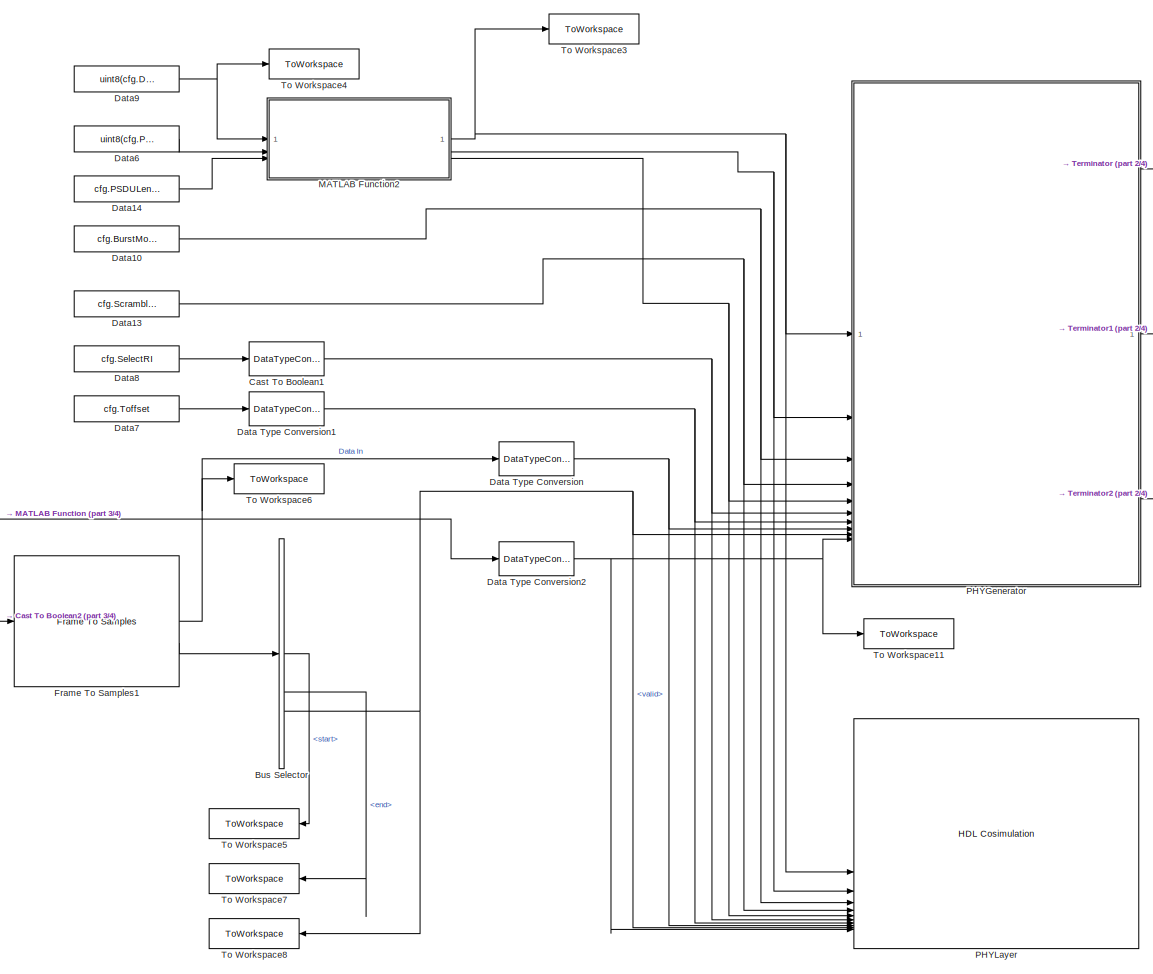
[diagram: root canvas - part 1/4, center side, full height]
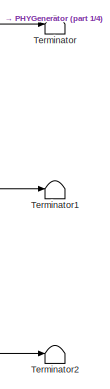
[diagram: root canvas - part 2/4, middle right region]
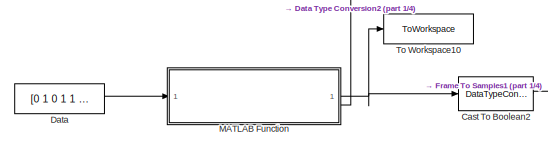
[diagram: root canvas - part 3/4, middle left region]
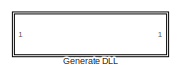
[diagram: root canvas - part 4/4, bottom right region]
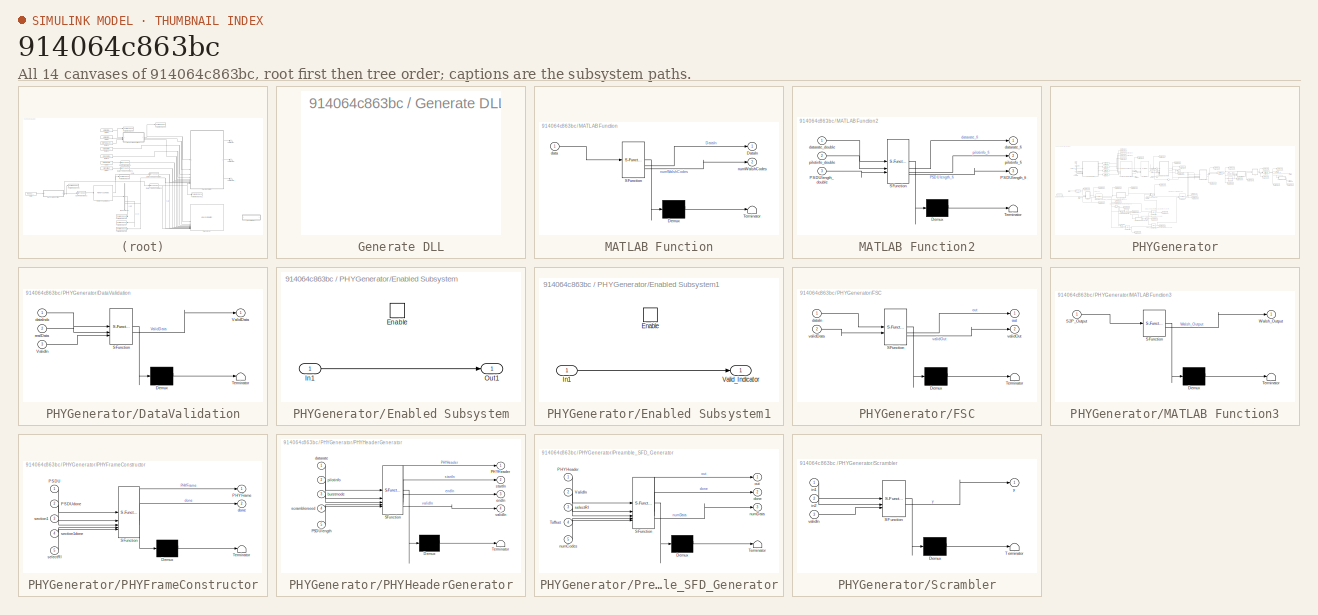
[diagram: thumbnail index - all 14 canvases of the model, root first then tree order]
MODEL slx_914064c863bc
KIND model
CONFIG AbsTol = auto
CONFIG EnableMultiTasking = off
CONFIG FixedStep = auto
CONFIG MaxStep = auto
CONFIG MinStep = auto
CONFIG RelTol = 1e-3
CONFIG SampleTimeConstraint = Unconstrained
CONFIG SolverName = FixedStepDiscrete
CONFIG StartTime = 0.0
CONFIG StopTime = 5E-2
BLOCK [BusSelector] Bus Selector
  OutputSignals = start,end,valid
BLOCK [DataTypeConversion] Cast To Boolean1
  OutDataTypeStr = boolean
  RndMeth = Floor
  SaturateOnIntegerOverflow = off
BLOCK [DataTypeConversion] Cast To Boolean2
  OutDataTypeStr = boolean
  RndMeth = Floor
  SaturateOnIntegerOverflow = off
BLOCK [Constant] Data
  SampleTime = -1
  Value = [0 1 0 1 1 0 1 1 1 1]
BLOCK [DataTypeConversion] Data Type Conversion
  OutDataTypeStr = fixdt(1,16)
  OutMax = [1]
  RndMeth = Floor
  SaturateOnIntegerOverflow = off
BLOCK [DataTypeConversion] Data Type Conversion1
  OutDataTypeStr = fixdt(1,16)
  OutMax = [16]
  RndMeth = Floor
  SaturateOnIntegerOverflow = off
BLOCK [DataTypeConversion] Data Type Conversion2
  OutDataTypeStr = fixdt(1,32)
  OutMax = [32]
  RndMeth = Floor
  SaturateOnIntegerOverflow = off
BLOCK [Constant] Data10
  SampleTime = (9056*8)/(42E6)
  Value = cfg.BurstMode
BLOCK [Constant] Data13
  SampleTime = (9056*8)/(42E6)
  Value = cfg.ScramblerSeed
BLOCK [Constant] Data14
  SampleTime = -1
  Value = cfg.PSDULength
BLOCK [Constant] Data6
  SampleTime = -1
  Value = uint8(cfg.PilotInfo)
BLOCK [Constant] Data7
  SampleTime = (9056*8)/(42E6)
  Value = cfg.Toffset
BLOCK [Constant] Data8
  SampleTime = (9056*8)/(42E6)
  Value = cfg.SelectRI
BLOCK [Constant] Data9
  SampleTime = -1
  Value = uint8(cfg.DataRate)
BLOCK [Reference] Frame To Samples1  REF=whdlio/Frame To Samples
  SourceBlock = whdlio/Frame To Samples
  SourceType = Frame To Samples
BLOCK [SubSystem] Generate DLL
  OpenFcn = eval('hdlverifier_gendll_PHYLayer');
BLOCK [SubSystem] MATLAB Function
  ErrorFcn = Stateflow.Translate.translate
  PermitHierarchicalResolution = ExplicitOnly
  SFBlockType = MATLAB Function
  TreatAsAtomicUnit = on
BLOCK [Demux] MATLAB Function/ Demux 
  Outputs = 1
BLOCK [S-Function] MATLAB Function/ SFunction 
  EnableBusSupport = on
  FunctionName = sf_sfun
  PortCounts = [1 3]
  SFcnIsStateOwnerBlock = off
  SFunctionDeploymentMode = off
  Tag = Stateflow S-Function 13
BLOCK [Terminator] MATLAB Function/ Terminator 
BLOCK [Outport] MATLAB Function/DataIn
  VectorParamsAs1DForOutWhenUnconnected = off
BLOCK [Inport] MATLAB Function/data
BLOCK [Outport] MATLAB Function/numWalshCodes
  Port = 2
BLOCK [SubSystem] MATLAB Function2
  ErrorFcn = Stateflow.Translate.translate
  PermitHierarchicalResolution = ExplicitOnly
  SFBlockType = MATLAB Function
  TreatAsAtomicUnit = on
BLOCK [Demux] MATLAB Function2/ Demux 
  Outputs = 1
BLOCK [S-Function] MATLAB Function2/ SFunction 
  EnableBusSupport = on
  FunctionName = sf_sfun
  PortCounts = [3 4]
  SFcnIsStateOwnerBlock = off
  SFunctionDeploymentMode = off
  Tag = Stateflow S-Function 5
BLOCK [Terminator] MATLAB Function2/ Terminator 
BLOCK [Inport] MATLAB Function2/PSDUlength_double
  Port = 3
BLOCK [Outport] MATLAB Function2/PSDUlength_fi
  Port = 3
BLOCK [Inport] MATLAB Function2/datarate_double
BLOCK [Outport] MATLAB Function2/datarate_fi
  VectorParamsAs1DForOutWhenUnconnected = off
BLOCK [Inport] MATLAB Function2/pilotinfo_double
  Port = 2
BLOCK [Outport] MATLAB Function2/pilotinfo_fi
  Port = 2
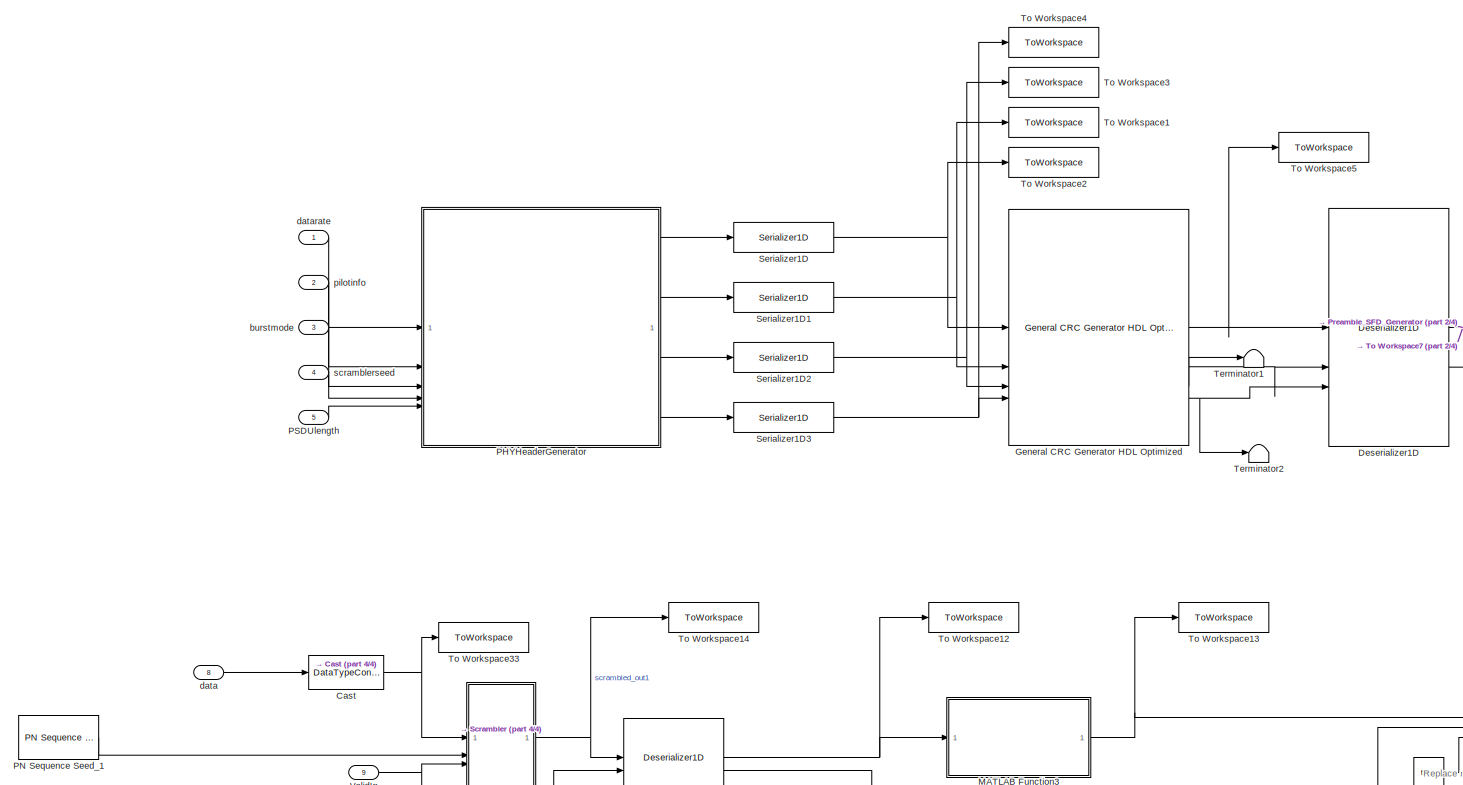
[diagram: PHYGenerator - part 1/4, top left region]
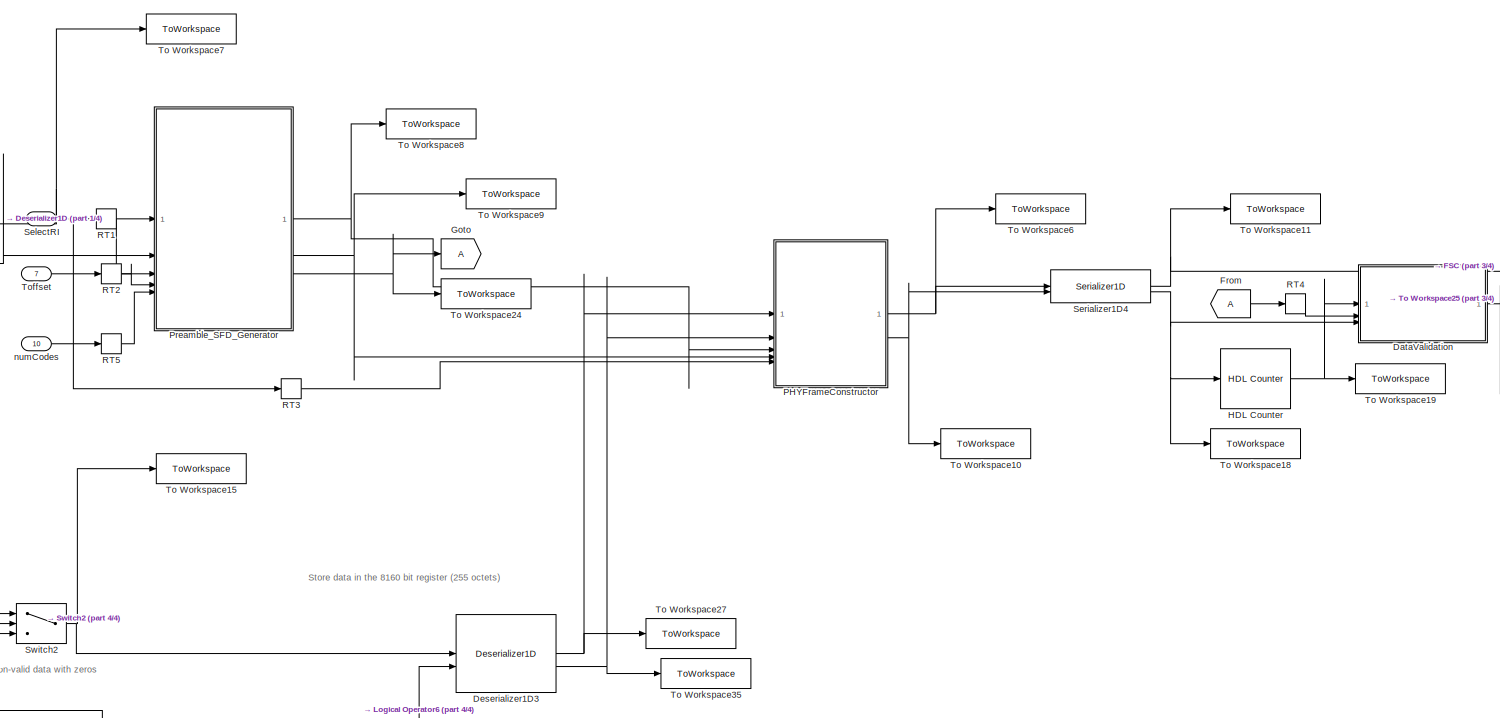
[diagram: PHYGenerator - part 2/4, central region]
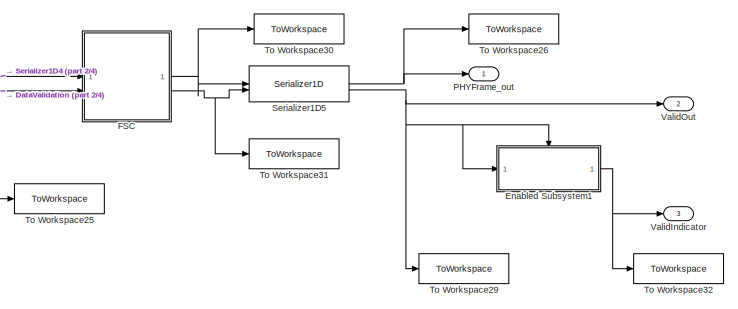
[diagram: PHYGenerator - part 3/4, middle right region]
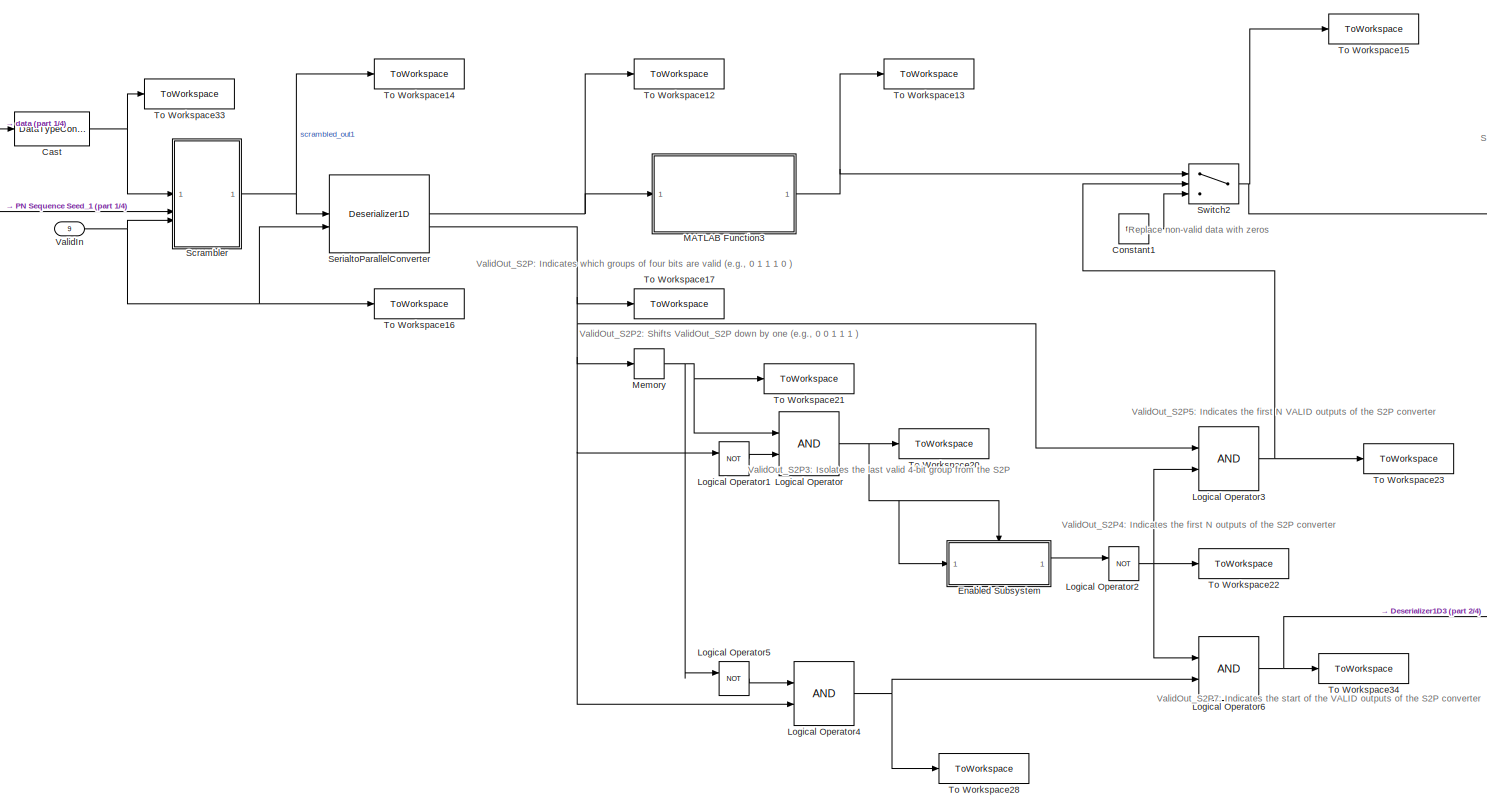
[diagram: PHYGenerator - part 4/4, bottom left region]
BLOCK [SubSystem] PHYGenerator
  TreatAsAtomicUnit = on
BLOCK [DataTypeConversion] PHYGenerator/Cast
  OutDataTypeStr = boolean
  RndMeth = Floor
  SaturateOnIntegerOverflow = off
BLOCK [Constant] PHYGenerator/Constant1
  SampleTime = -1
  Value = false
BLOCK [SubSystem] PHYGenerator/DataValidation
  ErrorFcn = Stateflow.Translate.translate
  PermitHierarchicalResolution = ExplicitOnly
  SFBlockType = MATLAB Function
  TreatAsAtomicUnit = on
BLOCK [Demux] PHYGenerator/DataValidation/ Demux 
  Outputs = 1
BLOCK [S-Function] PHYGenerator/DataValidation/ SFunction 
  EnableBusSupport = on
  FunctionName = sf_sfun
  PortCounts = [3 2]
  SFcnIsStateOwnerBlock = off
  SFunctionDeploymentMode = off
  Tag = Stateflow S-Function 12
BLOCK [Terminator] PHYGenerator/DataValidation/ Terminator 
BLOCK [Outport] PHYGenerator/DataValidation/ValidData
  VectorParamsAs1DForOutWhenUnconnected = off
BLOCK [Inport] PHYGenerator/DataValidation/ValidIn
  Port = 3
BLOCK [Inport] PHYGenerator/DataValidation/dataIndx
BLOCK [Inport] PHYGenerator/DataValidation/realData
  Port = 2
BLOCK [Reference] PHYGenerator/Deserializer1D  REF=hdlsllib/HDL Operations/Deserializer1D
  SourceBlock = hdlsllib/HDL Operations/Deserializer1D
  SourceType = Deserializer1D
BLOCK [Reference] PHYGenerator/Deserializer1D3  REF=hdlsllib/HDL Operations/Deserializer1D
  SourceBlock = hdlsllib/HDL Operations/Deserializer1D
  SourceType = Deserializer1D
BLOCK [SubSystem] PHYGenerator/Enabled Subsystem
  TreatAsAtomicUnit = on
BLOCK [EnablePort] PHYGenerator/Enabled Subsystem/Enable
BLOCK [Inport] PHYGenerator/Enabled Subsystem/In1
BLOCK [Outport] PHYGenerator/Enabled Subsystem/Out1
BLOCK [SubSystem] PHYGenerator/Enabled Subsystem1
  TreatAsAtomicUnit = on
BLOCK [EnablePort] PHYGenerator/Enabled Subsystem1/Enable
BLOCK [Inport] PHYGenerator/Enabled Subsystem1/In1
BLOCK [Outport] PHYGenerator/Enabled Subsystem1/Valid_Indicator
BLOCK [SubSystem] PHYGenerator/FSC
  ErrorFcn = Stateflow.Translate.translate
  PermitHierarchicalResolution = ExplicitOnly
  SFBlockType = MATLAB Function
  TreatAsAtomicUnit = on
BLOCK [Demux] PHYGenerator/FSC/ Demux 
  Outputs = 1
BLOCK [S-Function] PHYGenerator/FSC/ SFunction 
  EnableBusSupport = on
  FunctionName = sf_sfun
  PortCounts = [2 3]
  SFcnIsStateOwnerBlock = off
  SFunctionDeploymentMode = off
  Tag = Stateflow S-Function 16
BLOCK [Terminator] PHYGenerator/FSC/ Terminator 
BLOCK [Inport] PHYGenerator/FSC/dataIn
BLOCK [Outport] PHYGenerator/FSC/out
  VectorParamsAs1DForOutWhenUnconnected = off
BLOCK [Inport] PHYGenerator/FSC/validData
  Port = 2
BLOCK [Outport] PHYGenerator/FSC/validOut
  Port = 2
BLOCK [From] PHYGenerator/From
BLOCK [Reference] PHYGenerator/General CRC Generator HDL Optimized  REF=commhdlcrc/General CRC
Generator
HDL Optimized
  SourceBlock = commhdlcrc/General CRC\nGenerator\nHDL Optimized
  SourceType = General CRC Generator HDL Optimized
BLOCK [Goto] PHYGenerator/Goto
BLOCK [Reference] PHYGenerator/HDL Counter  REF=hdlsllib/Sources/HDL Counter
  SourceBlock = hdlsllib/Sources/HDL Counter
  SourceType = HDL Counter
BLOCK [Logic] PHYGenerator/Logical Operator
  AllPortsSameDT = off
  IconShape = distinctive
  OutDataTypeStr = boolean
BLOCK [Logic] PHYGenerator/Logical Operator1
  AllPortsSameDT = off
  IconShape = distinctive
  Operator = NOT
  OutDataTypeStr = boolean
BLOCK [Logic] PHYGenerator/Logical Operator2
  AllPortsSameDT = off
  IconShape = distinctive
  Operator = NOT
  OutDataTypeStr = boolean
BLOCK [Logic] PHYGenerator/Logical Operator3
  AllPortsSameDT = off
  IconShape = distinctive
  OutDataTypeStr = boolean
BLOCK [Logic] PHYGenerator/Logical Operator4
  AllPortsSameDT = off
  IconShape = distinctive
  OutDataTypeStr = boolean
BLOCK [Logic] PHYGenerator/Logical Operator5
  AllPortsSameDT = off
  IconShape = distinctive
  Operator = NOT
  OutDataTypeStr = boolean
BLOCK [Logic] PHYGenerator/Logical Operator6
  AllPortsSameDT = off
  IconShape = distinctive
  OutDataTypeStr = boolean
BLOCK [SubSystem] PHYGenerator/MATLAB Function3
  ErrorFcn = Stateflow.Translate.translate
  PermitHierarchicalResolution = ExplicitOnly
  SFBlockType = MATLAB Function
  TreatAsAtomicUnit = on
BLOCK [Demux] PHYGenerator/MATLAB Function3/ Demux 
  Outputs = 1
BLOCK [S-Function] PHYGenerator/MATLAB Function3/ SFunction 
  EnableBusSupport = on
  FunctionName = sf_sfun
  PortCounts = [1 2]
  SFcnIsStateOwnerBlock = off
  SFunctionDeploymentMode = off
  Tag = Stateflow S-Function 10
BLOCK [Terminator] PHYGenerator/MATLAB Function3/ Terminator 
BLOCK [Inport] PHYGenerator/MATLAB Function3/S2P_Output
BLOCK [Outport] PHYGenerator/MATLAB Function3/Walsh_Output
  VectorParamsAs1DForOutWhenUnconnected = off
BLOCK [Memory] PHYGenerator/Memory
  InheritSampleTime = on
BLOCK [SubSystem] PHYGenerator/PHYFrameConstructor
  ErrorFcn = Stateflow.Translate.translate
  PermitHierarchicalResolution = ExplicitOnly
  SFBlockType = MATLAB Function
  TreatAsAtomicUnit = on
BLOCK [Demux] PHYGenerator/PHYFrameConstructor/ Demux 
  Outputs = 1
BLOCK [S-Function] PHYGenerator/PHYFrameConstructor/ SFunction 
  EnableBusSupport = on
  FunctionName = sf_sfun
  PortCounts = [5 3]
  SFcnIsStateOwnerBlock = off
  SFunctionDeploymentMode = off
  Tag = Stateflow S-Function 11
BLOCK [Terminator] PHYGenerator/PHYFrameConstructor/ Terminator 
BLOCK [Outport] PHYGenerator/PHYFrameConstructor/PHYFrame
  VectorParamsAs1DForOutWhenUnconnected = off
BLOCK [Inport] PHYGenerator/PHYFrameConstructor/PSDU
BLOCK [Inport] PHYGenerator/PHYFrameConstructor/PSDUdone
  Port = 2
BLOCK [Outport] PHYGenerator/PHYFrameConstructor/done
  Port = 2
BLOCK [Inport] PHYGenerator/PHYFrameConstructor/section1
  Port = 3
BLOCK [Inport] PHYGenerator/PHYFrameConstructor/section1done
  Port = 4
BLOCK [Inport] PHYGenerator/PHYFrameConstructor/selectRI
  Port = 5
BLOCK [Outport] PHYGenerator/PHYFrame_out
  VectorParamsAs1DForOutWhenUnconnected = off
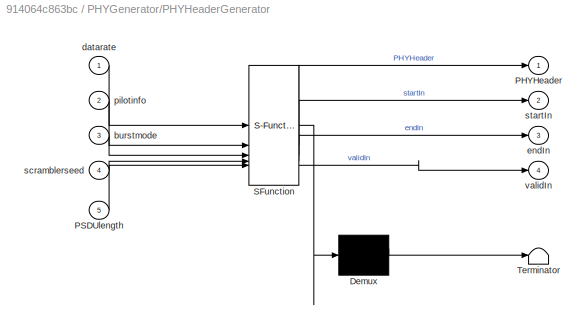
BLOCK [SubSystem] PHYGenerator/PHYHeaderGenerator
  ErrorFcn = Stateflow.Translate.translate
  PermitHierarchicalResolution = ExplicitOnly
  SFBlockType = MATLAB Function
  TreatAsAtomicUnit = on
BLOCK [Demux] PHYGenerator/PHYHeaderGenerator/ Demux 
  Outputs = 1
BLOCK [S-Function] PHYGenerator/PHYHeaderGenerator/ SFunction 
  EnableBusSupport = on
  FunctionName = sf_sfun
  PortCounts = [5 5]
  SFcnIsStateOwnerBlock = off
  SFunctionDeploymentMode = off
  Tag = Stateflow S-Function 6
BLOCK [Terminator] PHYGenerator/PHYHeaderGenerator/ Terminator 
BLOCK [Outport] PHYGenerator/PHYHeaderGenerator/PHYHeader
  VectorParamsAs1DForOutWhenUnconnected = off
BLOCK [Inport] PHYGenerator/PHYHeaderGenerator/PSDUlength
  Port = 5
BLOCK [Inport] PHYGenerator/PHYHeaderGenerator/burstmode
  Port = 3
BLOCK [Inport] PHYGenerator/PHYHeaderGenerator/datarate
BLOCK [Outport] PHYGenerator/PHYHeaderGenerator/endIn
  Port = 3
BLOCK [Inport] PHYGenerator/PHYHeaderGenerator/pilotinfo
  Port = 2
BLOCK [Inport] PHYGenerator/PHYHeaderGenerator/scramblerseed
  Port = 4
BLOCK [Outport] PHYGenerator/PHYHeaderGenerator/startIn
  Port = 2
BLOCK [Outport] PHYGenerator/PHYHeaderGenerator/validIn
  Port = 4
BLOCK [Reference] PHYGenerator/PN Sequence Seed_1  REF=commseqgen3/PN Sequence
Generator
  LibrarySourceBlock = commhdlsource/PN Sequence\nGenerator
  SourceBlock = commseqgen3/PN Sequence\nGenerator
  SourceType = PN Sequence Generator
BLOCK [Inport] PHYGenerator/PSDUlength
  Port = 5
BLOCK [SubSystem] PHYGenerator/Preamble_SFD_Generator
  ErrorFcn = Stateflow.Translate.translate
  PermitHierarchicalResolution = ExplicitOnly
  SFBlockType = MATLAB Function
  TreatAsAtomicUnit = on
BLOCK [Demux] PHYGenerator/Preamble_SFD_Generator/ Demux 
  Outputs = 1
BLOCK [S-Function] PHYGenerator/Preamble_SFD_Generator/ SFunction 
  EnableBusSupport = on
  FunctionName = sf_sfun
  PortCounts = [5 4]
  SFcnIsStateOwnerBlock = off
  SFunctionDeploymentMode = off
  Tag = Stateflow S-Function 7
BLOCK [Terminator] PHYGenerator/Preamble_SFD_Generator/ Terminator 
BLOCK [Inport] PHYGenerator/Preamble_SFD_Generator/PHYHeader
BLOCK [Inport] PHYGenerator/Preamble_SFD_Generator/Toffset
  Port = 4
BLOCK [Inport] PHYGenerator/Preamble_SFD_Generator/ValidIn
  Port = 2
BLOCK [Outport] PHYGenerator/Preamble_SFD_Generator/done
  Port = 2
BLOCK [Inport] PHYGenerator/Preamble_SFD_Generator/numCodes
  Port = 5
BLOCK [Outport] PHYGenerator/Preamble_SFD_Generator/numData
  Port = 3
BLOCK [Outport] PHYGenerator/Preamble_SFD_Generator/out
  VectorParamsAs1DForOutWhenUnconnected = off
BLOCK [Inport] PHYGenerator/Preamble_SFD_Generator/selectRI
  Port = 3
BLOCK [RateTransition] PHYGenerator/RT1
  Integrity = off
  OutPortSampleTime = (9056*8)/(42E6)
BLOCK [RateTransition] PHYGenerator/RT2
  Integrity = off
  OutPortSampleTime = (9056*8)/(42E6)
BLOCK [RateTransition] PHYGenerator/RT3
  Integrity = off
  OutPortSampleTime = (9056*8)/(42E6)
BLOCK [RateTransition] PHYGenerator/RT4
  Integrity = off
  OutPortSampleTime = 8/(42E6)
BLOCK [RateTransition] PHYGenerator/RT5
  Integrity = off
  OutPortSampleTime = (9056*8)/(42E6)
BLOCK [SubSystem] PHYGenerator/Scrambler
  ErrorFcn = Stateflow.Translate.translate
  PermitHierarchicalResolution = ExplicitOnly
  SFBlockType = MATLAB Function
  TreatAsAtomicUnit = on
BLOCK [Demux] PHYGenerator/Scrambler/ Demux 
  Outputs = 1
BLOCK [S-Function] PHYGenerator/Scrambler/ SFunction 
  EnableBusSupport = on
  FunctionName = sf_sfun
  PortCounts = [3 2]
  SFcnIsStateOwnerBlock = off
  SFunctionDeploymentMode = off
  Tag = Stateflow S-Function 8
BLOCK [Terminator] PHYGenerator/Scrambler/ Terminator 
BLOCK [Inport] PHYGenerator/Scrambler/in1
BLOCK [Inport] PHYGenerator/Scrambler/in2
  Port = 2
BLOCK [Inport] PHYGenerator/Scrambler/validIn
  Port = 3
BLOCK [Outport] PHYGenerator/Scrambler/y
  VectorParamsAs1DForOutWhenUnconnected = off
BLOCK [Inport] PHYGenerator/SelectRI
  Port = 6
BLOCK [Reference] PHYGenerator/Serializer1D  REF=hdlsllib/HDL Operations/Serializer1D
  SourceBlock = hdlsllib/HDL Operations/Serializer1D
  SourceType = Serializer1D
BLOCK [Reference] PHYGenerator/Serializer1D1  REF=hdlsllib/HDL Operations/Serializer1D
  SourceBlock = hdlsllib/HDL Operations/Serializer1D
  SourceType = Serializer1D
BLOCK [Reference] PHYGenerator/Serializer1D2  REF=hdlsllib/HDL Operations/Serializer1D
  SourceBlock = hdlsllib/HDL Operations/Serializer1D
  SourceType = Serializer1D
BLOCK [Reference] PHYGenerator/Serializer1D3  REF=hdlsllib/HDL Operations/Serializer1D
  SourceBlock = hdlsllib/HDL Operations/Serializer1D
  SourceType = Serializer1D
BLOCK [Reference] PHYGenerator/Serializer1D4  REF=hdlsllib/HDL Operations/Serializer1D
  SourceBlock = hdlsllib/HDL Operations/Serializer1D
  SourceType = Serializer1D
BLOCK [Reference] PHYGenerator/Serializer1D5  REF=hdlsllib/HDL Operations/Serializer1D
  SourceBlock = hdlsllib/HDL Operations/Serializer1D
  SourceType = Serializer1D
BLOCK [Reference] PHYGenerator/SerialtoParallelConverter  REF=hdlsllib/HDL Operations/Deserializer1D
  SourceBlock = hdlsllib/HDL Operations/Deserializer1D
  SourceType = Deserializer1D
BLOCK [Switch] PHYGenerator/Switch2
  Criteria = u2 ~= 0
  InputSameDT = off
  SaturateOnIntegerOverflow = off
BLOCK [Terminator] PHYGenerator/Terminator1
BLOCK [Terminator] PHYGenerator/Terminator2
BLOCK [ToWorkspace] PHYGenerator/To Workspace1
  FixptAsFi = on
  MaxDataPoints = inf
  SampleTime = -1
  SaveFormat = Structure With Time
  VariableName = startIn
BLOCK [ToWorkspace] PHYGenerator/To Workspace10
  FixptAsFi = on
  MaxDataPoints = inf
  SampleTime = -1
  SaveFormat = Structure With Time
  VariableName = done2
BLOCK [ToWorkspace] PHYGenerator/To Workspace11
  FixptAsFi = on
  MaxDataPoints = inf
  SampleTime = -1
  SaveFormat = Structure With Time
  VariableName = Out2
BLOCK [ToWorkspace] PHYGenerator/To Workspace12
  FixptAsFi = on
  MaxDataPoints = inf
  SampleTime = -1
  SaveFormat = Structure With Time
  VariableName = S2Poutput
BLOCK [ToWorkspace] PHYGenerator/To Workspace13
  FixptAsFi = on
  MaxDataPoints = inf
  SampleTime = -1
  SaveFormat = Structure With Time
  VariableName = WalshOutput
BLOCK [ToWorkspace] PHYGenerator/To Workspace14
  FixptAsFi = on
  MaxDataPoints = inf
  SampleTime = -1
  SaveFormat = Structure With Time
  VariableName = ScramblerOut
BLOCK [ToWorkspace] PHYGenerator/To Workspace15
  FixptAsFi = on
  MaxDataPoints = inf
  SampleTime = -1
  SaveFormat = Structure With Time
  VariableName = PSDU_1
BLOCK [ToWorkspace] PHYGenerator/To Workspace16
  FixptAsFi = on
  MaxDataPoints = inf
  SampleTime = -1
  SaveFormat = Structure With Time
  VariableName = ValidIn_Scram
BLOCK [ToWorkspace] PHYGenerator/To Workspace17
  FixptAsFi = on
  MaxDataPoints = inf
  SampleTime = -1
  SaveFormat = Structure With Time
  VariableName = ValidOut_S2P
BLOCK [ToWorkspace] PHYGenerator/To Workspace18
  FixptAsFi = on
  MaxDataPoints = inf
  SampleTime = -1
  SaveFormat = Structure With Time
  VariableName = ValidOut2
BLOCK [ToWorkspace] PHYGenerator/To Workspace19
  FixptAsFi = on
  MaxDataPoints = inf
  SampleTime = -1
  SaveFormat = Structure With Time
  VariableName = CounterOut
BLOCK [ToWorkspace] PHYGenerator/To Workspace2
  FixptAsFi = on
  MaxDataPoints = inf
  SampleTime = -1
  SaveFormat = Structure With Time
  VariableName = dataIn
BLOCK [ToWorkspace] PHYGenerator/To Workspace20
  FixptAsFi = on
  MaxDataPoints = inf
  SampleTime = -1
  SaveFormat = Structure With Time
  VariableName = ValidOut_S2P3
BLOCK [ToWorkspace] PHYGenerator/To Workspace21
  FixptAsFi = on
  MaxDataPoints = inf
  SampleTime = -1
  SaveFormat = Structure With Time
  VariableName = ValidOut_S2P2
BLOCK [ToWorkspace] PHYGenerator/To Workspace22
  FixptAsFi = on
  MaxDataPoints = inf
  SampleTime = -1
  SaveFormat = Structure With Time
  VariableName = ValidOut_S2P4
BLOCK [ToWorkspace] PHYGenerator/To Workspace23
  FixptAsFi = on
  MaxDataPoints = inf
  SampleTime = -1
  SaveFormat = Structure With Time
  VariableName = ValidOut_S2P5
BLOCK [ToWorkspace] PHYGenerator/To Workspace24
  FixptAsFi = on
  MaxDataPoints = inf
  SampleTime = -1
  SaveFormat = Structure With Time
  VariableName = numData
BLOCK [ToWorkspace] PHYGenerator/To Workspace25
  FixptAsFi = on
  MaxDataPoints = inf
  SampleTime = -1
  SaveFormat = Structure With Time
  VariableName = ValidOut
BLOCK [ToWorkspace] PHYGenerator/To Workspace26
  FixptAsFi = on
  MaxDataPoints = inf
  SampleTime = -1
  SaveFormat = Structure With Time
  VariableName = Out3
BLOCK [ToWorkspace] PHYGenerator/To Workspace27
  FixptAsFi = on
  MaxDataPoints = inf
  SampleTime = -1
  SaveFormat = Structure With Time
  VariableName = PSDU2
BLOCK [ToWorkspace] PHYGenerator/To Workspace28
  FixptAsFi = on
  MaxDataPoints = inf
  SampleTime = -1
  SaveFormat = Structure With Time
  VariableName = ValidOut_S2P6
BLOCK [ToWorkspace] PHYGenerator/To Workspace29
  FixptAsFi = on
  MaxDataPoints = inf
  SampleTime = -1
  SaveFormat = Structure With Time
  VariableName = ValidOutput
BLOCK [ToWorkspace] PHYGenerator/To Workspace3
  FixptAsFi = on
  MaxDataPoints = inf
  SampleTime = -1
  SaveFormat = Structure With Time
  VariableName = endIn
BLOCK [ToWorkspace] PHYGenerator/To Workspace30
  FixptAsFi = on
  MaxDataPoints = inf
  SampleTime = -1
  SaveFormat = Structure With Time
  VariableName = FSCOutput
BLOCK [ToWorkspace] PHYGenerator/To Workspace31
  FixptAsFi = on
  MaxDataPoints = inf
  SampleTime = -1
  SaveFormat = Structure With Time
  VariableName = ValidOutput1
BLOCK [ToWorkspace] PHYGenerator/To Workspace32
  FixptAsFi = on
  MaxDataPoints = inf
  SampleTime = -1
  SaveFormat = Structure With Time
  VariableName = ValidOutput2
BLOCK [ToWorkspace] PHYGenerator/To Workspace33
  FixptAsFi = on
  MaxDataPoints = inf
  SampleTime = -1
  SaveFormat = Structure With Time
  VariableName = DataIn2
BLOCK [ToWorkspace] PHYGenerator/To Workspace34
  FixptAsFi = on
  MaxDataPoints = inf
  SampleTime = -1
  SaveFormat = Structure With Time
  VariableName = ValidOut_S2P7
BLOCK [ToWorkspace] PHYGenerator/To Workspace35
  FixptAsFi = on
  MaxDataPoints = inf
  SampleTime = -1
  SaveFormat = Structure With Time
  VariableName = PSDU2ValidOut
BLOCK [ToWorkspace] PHYGenerator/To Workspace4
  FixptAsFi = on
  MaxDataPoints = inf
  SampleTime = -1
  SaveFormat = Structure With Time
  VariableName = validIn
BLOCK [ToWorkspace] PHYGenerator/To Workspace5
  FixptAsFi = on
  MaxDataPoints = inf
  SampleTime = -1
  SaveFormat = Structure With Time
  VariableName = dataOut
BLOCK [ToWorkspace] PHYGenerator/To Workspace6
  FixptAsFi = on
  MaxDataPoints = inf
  SampleTime = -1
  SaveFormat = Structure With Time
  VariableName = Out
BLOCK [ToWorkspace] PHYGenerator/To Workspace7
  FixptAsFi = on
  MaxDataPoints = inf
  SampleTime = -1
  SaveFormat = Structure With Time
  VariableName = dataOut2
BLOCK [ToWorkspace] PHYGenerator/To Workspace8
  FixptAsFi = on
  MaxDataPoints = inf
  SampleTime = -1
  SaveFormat = Structure With Time
  VariableName = Out1
BLOCK [ToWorkspace] PHYGenerator/To Workspace9
  FixptAsFi = on
  MaxDataPoints = inf
  SampleTime = -1
  SaveFormat = Structure With Time
  VariableName = done
BLOCK [Inport] PHYGenerator/Toffset
  Port = 7
BLOCK [Inport] PHYGenerator/ValidIn
  Port = 9
BLOCK [Outport] PHYGenerator/ValidIndicator
  Port = 3
  VectorParamsAs1DForOutWhenUnconnected = off
BLOCK [Outport] PHYGenerator/ValidOut
  Port = 2
  VectorParamsAs1DForOutWhenUnconnected = off
BLOCK [Inport] PHYGenerator/burstmode
  Port = 3
BLOCK [Inport] PHYGenerator/data
  Port = 8
BLOCK [Inport] PHYGenerator/datarate
BLOCK [Inport] PHYGenerator/numCodes
  Port = 10
BLOCK [Inport] PHYGenerator/pilotinfo
  Port = 2
BLOCK [Inport] PHYGenerator/scramblerseed
  Port = 4
BLOCK [Reference] PHYLayer  REF=vivadosimlib/HDL Cosimulation
  SourceBlock = vivadosimlib/HDL Cosimulation
  SourceType = Simulink and Vivado Simulator Cosimulation
  UserDataPersistent = on
BLOCK [Terminator] Terminator
BLOCK [Terminator] Terminator1
BLOCK [Terminator] Terminator2
BLOCK [ToWorkspace] To Workspace10
  FixptAsFi = on
  MaxDataPoints = inf
  SampleTime = -1
  SaveFormat = Structure With Time
  VariableName = DataIn1
BLOCK [ToWorkspace] To Workspace11
  FixptAsFi = on
  MaxDataPoints = inf
  SampleTime = -1
  SaveFormat = Structure With Time
  VariableName = numCodes
BLOCK [ToWorkspace] To Workspace3
  FixptAsFi = on
  MaxDataPoints = inf
  SampleTime = -1
  SaveFormat = Structure With Time
  VariableName = simout
BLOCK [ToWorkspace] To Workspace4
  FixptAsFi = on
  MaxDataPoints = inf
  SampleTime = -1
  SaveFormat = Structure With Time
  VariableName = simout4
BLOCK [ToWorkspace] To Workspace5
  FixptAsFi = on
  MaxDataPoints = inf
  NameLocation = top
  SampleTime = -1
  SaveFormat = Structure With Time
  VariableName = startIn1
BLOCK [ToWorkspace] To Workspace6
  FixptAsFi = on
  MaxDataPoints = inf
  SampleTime = -1
  SaveFormat = Structure With Time
  VariableName = DataIn
BLOCK [ToWorkspace] To Workspace7
  FixptAsFi = on
  MaxDataPoints = inf
  NameLocation = top
  SampleTime = -1
  SaveFormat = Structure With Time
  VariableName = endIn1
BLOCK [ToWorkspace] To Workspace8
  FixptAsFi = on
  MaxDataPoints = inf
  NameLocation = top
  SampleTime = -1
  SaveFormat = Structure With Time
  VariableName = validIn1
ANNOTATION PHYGenerator: Replace non-valid data with zeros
ANNOTATION PHYGenerator: Store data in the 8160 bit register (255 octets)
ANNOTATION PHYGenerator: ValidOut_S2P2: Shifts ValidOut_S2P down by one (e.g., 0 0 1 1 1 )
ANNOTATION PHYGenerator: ValidOut_S2P3: Isolates the last valid 4-bit group from the S2P
ANNOTATION PHYGenerator: ValidOut_S2P4: Indicates the first N outputs of the S2P converter
ANNOTATION PHYGenerator: ValidOut_S2P5: Indicates the first N VALID outputs of the S2P converter
ANNOTATION PHYGenerator: ValidOut_S2P7: Indicates the start of the VALID outputs of the S2P converter
ANNOTATION PHYGenerator: ValidOut_S2P: Indicates which groups of four bits are valid (e.g., 0 1 1 1 0 )
LINE Bus Selector:1 -> To Workspace5:1
LINE Bus Selector:2 -> To Workspace7:1
NET Bus Selector:3 -> PHYGenerator:9, PHYLayer:10, To Workspace8:1
NET Cast To Boolean1:1 -> PHYGenerator:6, PHYLayer:7
LINE Cast To Boolean2:1 -> Frame To Samples1:1
NET Data Type Conversion1:1 -> PHYGenerator:7, PHYLayer:8
NET Data Type Conversion2:1 -> PHYGenerator:10, PHYLayer:11, To Workspace11:1
NET Data Type Conversion:1 -> PHYGenerator:8, PHYLayer:9
NET Data10:1 -> PHYGenerator:3, PHYLayer:4
NET Data13:1 -> PHYGenerator:4, PHYLayer:5
LINE Data14:1 -> MATLAB Function2:3
LINE Data6:1 -> MATLAB Function2:2
LINE Data7:1 -> Data Type Conversion1:1
LINE Data8:1 -> Cast To Boolean1:1
NET Data9:1 -> MATLAB Function2:1, To Workspace4:1
LINE Data:1 -> MATLAB Function:1
NET Frame To Samples1:1 -> Data Type Conversion:1, To Workspace6:1
LINE Frame To Samples1:2 -> Bus Selector:1
NET MATLAB Function2:1 -> PHYGenerator:1, PHYLayer:2, To Workspace3:1
NET MATLAB Function2:2 -> PHYGenerator:2, PHYLayer:3
NET MATLAB Function2:3 -> PHYGenerator:5, PHYLayer:6
NET MATLAB Function:1 -> Cast To Boolean2:1, To Workspace10:1
LINE MATLAB Function:2 -> Data Type Conversion2:1
NET PHYGenerator/Cast:1 -> PHYGenerator/Scrambler:1, PHYGenerator/To Workspace33:1
LINE PHYGenerator/Constant1:1 -> PHYGenerator/Switch2:3
NET PHYGenerator/DataValidation:1 -> PHYGenerator/FSC:2, PHYGenerator/To Workspace25:1
NET PHYGenerator/Deserializer1D3:1 -> PHYGenerator/PHYFrameConstructor:1, PHYGenerator/To Workspace27:1
NET PHYGenerator/Deserializer1D3:2 -> PHYGenerator/PHYFrameConstructor:2, PHYGenerator/To Workspace35:1
NET PHYGenerator/Deserializer1D:1 -> PHYGenerator/Preamble_SFD_Generator:1, PHYGenerator/To Workspace7:1
LINE PHYGenerator/Deserializer1D:2 -> PHYGenerator/Preamble_SFD_Generator:2
LINE PHYGenerator/Enabled Subsystem/In1:1 -> PHYGenerator/Enabled Subsystem/Out1:1
LINE PHYGenerator/Enabled Subsystem1/In1:1 -> PHYGenerator/Enabled Subsystem1/Valid_Indicator:1
NET PHYGenerator/Enabled Subsystem1:1 -> PHYGenerator/To Workspace32:1, PHYGenerator/ValidIndicator:1
LINE PHYGenerator/Enabled Subsystem:1 -> PHYGenerator/Logical Operator2:1
NET PHYGenerator/FSC:1 -> PHYGenerator/Serializer1D5:1, PHYGenerator/To Workspace30:1
NET PHYGenerator/FSC:2 -> PHYGenerator/Serializer1D5:2, PHYGenerator/To Workspace31:1
LINE PHYGenerator/From:1 -> PHYGenerator/RT4:1
NET PHYGenerator/General CRC Generator HDL Optimized:1 -> PHYGenerator/Deserializer1D:1, PHYGenerator/To Workspace5:1
LINE PHYGenerator/General CRC Generator HDL Optimized:2 -> PHYGenerator/Deserializer1D:2
LINE PHYGenerator/General CRC Generator HDL Optimized:3 -> PHYGenerator/Terminator1:1
NET PHYGenerator/General CRC Generator HDL Optimized:4 -> PHYGenerator/Deserializer1D:3, PHYGenerator/Terminator2:1
NET PHYGenerator/HDL Counter:1 -> PHYGenerator/DataValidation:1, PHYGenerator/To Workspace19:1
LINE PHYGenerator/Logical Operator1:1 -> PHYGenerator/Logical Operator:2
NET PHYGenerator/Logical Operator2:1 -> PHYGenerator/Logical Operator3:2, PHYGenerator/Logical Operator6:1, PHYGenerator/To Workspace22:1
NET PHYGenerator/Logical Operator3:1 -> PHYGenerator/Switch2:2, PHYGenerator/To Workspace23:1
NET PHYGenerator/Logical Operator4:1 -> PHYGenerator/Logical Operator6:2, PHYGenerator/To Workspace28:1
LINE PHYGenerator/Logical Operator5:1 -> PHYGenerator/Logical Operator4:1
NET PHYGenerator/Logical Operator6:1 -> PHYGenerator/Deserializer1D3:2, PHYGenerator/To Workspace34:1
NET PHYGenerator/Logical Operator:1 -> PHYGenerator/Enabled Subsystem:1, PHYGenerator/Enabled Subsystem:enable, PHYGenerator/To Workspace20:1
NET PHYGenerator/MATLAB Function3:1 -> PHYGenerator/Switch2:1, PHYGenerator/To Workspace13:1
NET PHYGenerator/Memory:1 -> PHYGenerator/Logical Operator5:1, PHYGenerator/Logical Operator:1, PHYGenerator/To Workspace21:1
NET PHYGenerator/PHYFrameConstructor:1 -> PHYGenerator/Serializer1D4:1, PHYGenerator/To Workspace6:1
NET PHYGenerator/PHYFrameConstructor:2 -> PHYGenerator/Serializer1D4:2, PHYGenerator/To Workspace10:1
LINE PHYGenerator/PHYHeaderGenerator:1 -> PHYGenerator/Serializer1D:1
LINE PHYGenerator/PHYHeaderGenerator:2 -> PHYGenerator/Serializer1D1:1
LINE PHYGenerator/PHYHeaderGenerator:3 -> PHYGenerator/Serializer1D2:1
LINE PHYGenerator/PHYHeaderGenerator:4 -> PHYGenerator/Serializer1D3:1
LINE PHYGenerator/PN Sequence Seed_1:1 -> PHYGenerator/Scrambler:2
LINE PHYGenerator/PSDUlength:1 -> PHYGenerator/PHYHeaderGenerator:5
NET PHYGenerator/Preamble_SFD_Generator:1 -> PHYGenerator/PHYFrameConstructor:3, PHYGenerator/To Workspace8:1
NET PHYGenerator/Preamble_SFD_Generator:2 -> PHYGenerator/PHYFrameConstructor:4, PHYGenerator/To Workspace9:1
NET PHYGenerator/Preamble_SFD_Generator:3 -> PHYGenerator/Goto:1, PHYGenerator/To Workspace24:1
LINE PHYGenerator/RT1:1 -> PHYGenerator/Preamble_SFD_Generator:3
LINE PHYGenerator/RT2:1 -> PHYGenerator/Preamble_SFD_Generator:4
LINE PHYGenerator/RT3:1 -> PHYGenerator/PHYFrameConstructor:5
LINE PHYGenerator/RT4:1 -> PHYGenerator/DataValidation:2
LINE PHYGenerator/RT5:1 -> PHYGenerator/Preamble_SFD_Generator:5
NET PHYGenerator/Scrambler:1 -> PHYGenerator/SerialtoParallelConverter:1, PHYGenerator/To Workspace14:1
NET PHYGenerator/SelectRI:1 -> PHYGenerator/RT1:1, PHYGenerator/RT3:1
NET PHYGenerator/Serializer1D1:1 -> PHYGenerator/General CRC Generator HDL Optimized:2, PHYGenerator/To Workspace1:1
NET PHYGenerator/Serializer1D2:1 -> PHYGenerator/General CRC Generator HDL Optimized:3, PHYGenerator/To Workspace3:1
NET PHYGenerator/Serializer1D3:1 -> PHYGenerator/General CRC Generator HDL Optimized:4, PHYGenerator/To Workspace4:1
NET PHYGenerator/Serializer1D4:1 -> PHYGenerator/FSC:1, PHYGenerator/To Workspace11:1
NET PHYGenerator/Serializer1D4:2 -> PHYGenerator/DataValidation:3, PHYGenerator/HDL Counter:1, PHYGenerator/To Workspace18:1
NET PHYGenerator/Serializer1D5:1 -> PHYGenerator/PHYFrame_out:1, PHYGenerator/To Workspace26:1
NET PHYGenerator/Serializer1D5:2 -> PHYGenerator/Enabled Subsystem1:1, PHYGenerator/Enabled Subsystem1:enable, PHYGenerator/To Workspace29:1, PHYGenerator/ValidOut:1
NET PHYGenerator/Serializer1D:1 -> PHYGenerator/General CRC Generator HDL Optimized:1, PHYGenerator/To Workspace2:1
NET PHYGenerator/SerialtoParallelConverter:1 -> PHYGenerator/MATLAB Function3:1, PHYGenerator/To Workspace12:1
NET PHYGenerator/SerialtoParallelConverter:2 -> PHYGenerator/Logical Operator1:1, PHYGenerator/Logical Operator3:1, PHYGenerator/Logical Operator4:2, PHYGenerator/Memory:1, PHYGenerator/To Workspace17:1
NET PHYGenerator/Switch2:1 -> PHYGenerator/Deserializer1D3:1, PHYGenerator/To Workspace15:1
LINE PHYGenerator/Toffset:1 -> PHYGenerator/RT2:1
NET PHYGenerator/ValidIn:1 -> PHYGenerator/Scrambler:3, PHYGenerator/SerialtoParallelConverter:2, PHYGenerator/To Workspace16:1
LINE PHYGenerator/burstmode:1 -> PHYGenerator/PHYHeaderGenerator:3
LINE PHYGenerator/data:1 -> PHYGenerator/Cast:1
LINE PHYGenerator/datarate:1 -> PHYGenerator/PHYHeaderGenerator:1
LINE PHYGenerator/numCodes:1 -> PHYGenerator/RT5:1
LINE PHYGenerator/pilotinfo:1 -> PHYGenerator/PHYHeaderGenerator:2
LINE PHYGenerator/scramblerseed:1 -> PHYGenerator/PHYHeaderGenerator:4
LINE PHYGenerator:1 -> Terminator:1
LINE PHYGenerator:2 -> Terminator1:1
LINE PHYGenerator:3 -> Terminator2:1
note: NET lines group one-source signal fan-out (src -> all destinations, sorted); 1:1 wires keep LINE
CHART PHYGenerator/FSC states=1 transitions=1
  STATE_LABEL 'eML_blk_kernel()'
  STATE_LABEL "SCRIPT:\nfunction [out, validOut] = FSC(dataIn, validData)\n%#codegen\nout = boolean(zeros(1,8)); \nFSC1 = boolean([0 1 0 1 0 1 0 1]); \nFSC0 = boolean([1 0 1 0 1 0 1 0]); \nvalidOut = false; \n\nif (validData)\n    if (dataIn) % Bit is a logic '1'\n        out = FSC1; \n    else % Bit is a logic '0'\n        out = FSC0; \n    end\n    validOut = true; \nend "
CHART MATLAB Function2 states=1 transitions=1
  STATE_LABEL 'eML_blk_kernel()'
  STATE_LABEL 'SCRIPT:\nfunction [datarate_fi, pilotinfo_fi, PSDUlength_fi] = fcn(datarate_double, pilotinfo_double, PSDUlength_double)\ndatarate_sum = sum(datarate_double);\npilotinfo_sum = sum(pilotinfo_double); \n\ndatarate_fi = fi(0,0,3,0);\npilotinfo_fi = fi(0,0,3,0);\nPSDUlength_fi = fi(PSDUlength_double,0,9,0);\n% , pilotinfo, burstmode, scramblerseed, PSDUlength\n\n% Data rate\nswitch datarate_sum\n    case sum(doub...<+704ch>'
CHART PHYGenerator/PHYHeaderGenerator states=1 transitions=1
  STATE_LABEL 'eML_blk_kernel()'
  STATE_LABEL "SCRIPT:\nfunction [PHYHeader, startIn, endIn, validIn]  = fcn(datarate, pilotinfo, burstmode, scramblerseed, PSDUlength)\n\n% persistent CRC_IEEE802_15_6_gen;\n% if isempty(CRC_IEEE802_15_6_gen)\n%     CRC_IEEE802_15_6_gen = comm.HDLCRCGenerator('Polynomial', [1 1 0 0 0 1 1 0 1]);\n% end\n\nPHYHeader = boolean(zeros(32,1)); \ndata = boolean(zeros(1,32));\n\n% , pilotinfo, burstmode, scramblerseed, PSDUlength...<+1958ch>"
CHART PHYGenerator/Preamble_SFD_Generator states=1 transitions=1
  STATE_LABEL 'eML_blk_kernel()'
  STATE_LABEL 'SCRIPT:\nfunction [out, done, numData] = fcn(PHYHeader, ValidIn, selectRI, Toffset, numCodes)\n\n%Toffset = double(toffset);\n%out0 = boolean(zeros(1,800));\n\nout = boolean(zeros(1,896)); % Output register\ndone = false; % Done indication\nnumData = int32(0); % Represents the number of valid bits that require FSC coding\n%done1 = false; \n\nif(ValidIn) % The PHYHeader has been successfully generated\n\n    % ...<+2234ch>'
CHART PHYGenerator/Scrambler states=1 transitions=1
  STATE_LABEL 'eML_blk_kernel()'
  STATE_LABEL 'SCRIPT:\nfunction y = XOR(in1, in2, validIn)\n%#codegen\ny = false;\nif validIn\n    y = xor(in1,in2);  \nend\n'
CHART PHYGenerator/MATLAB Function3 states=1 transitions=1
  STATE_LABEL 'eML_blk_kernel()'
  STATE_LABEL 'SCRIPT:\nfunction Walsh_Output = WalshCoding(S2P_Output)\n\nWalsh_Output = boolean(zeros(1,16)); \nS2P_Output_dec = S2P_Output(4)*(8) + S2P_Output(3)*(4) + S2P_Output(2)*(2) + S2P_Output(1)*(1); \n\nWALSH16_CODES = boolean([1 1 1 1 1 1 1 1 1 1 1 1 1 1 1 1; \n                 1 0 1 0 1 0 1 0 1 0 1 0 1 0 1 0; \n                 1 1 0 0 1 1 0 0 1 1 0 0 1 1 0 0; \n                 1 0 0 1 1 0 0 1 1 0 0 1 1 0 0...<+660ch>'
CHART PHYGenerator/PHYFrameConstructor states=1 transitions=1
  STATE_LABEL 'eML_blk_kernel()'
  STATE_LABEL 'SCRIPT:\nfunction [PHYFrame, done] = fcn(PSDU, PSDUdone,  section1, section1done, selectRI)\n%#codegen\n% Section 1 is maximum of 896 bits and PSDU is 8160 bits. Thus, PHYFrame is\n% 9056 bits wide. \nPHYFrame = boolean(zeros(1,9056)); \npsdu = boolean(zeros(1,8160)); \ndone = false;\npsdu = transpose(PSDU); \nif(PSDUdone && section1done)\n    if (selectRI) % Full Section1 is used to create frame\n        PH...<+221ch>'
CHART PHYGenerator/DataValidation states=1 transitions=1
  STATE_LABEL 'eML_blk_kernel()'
  STATE_LABEL 'SCRIPT:\nfunction ValidData = fcn(dataIndx, realData, ValidIn)\n%#codegen\nValidData = false; \nif (ValidIn) % Is the current sample a Valid piece of data from the serializer\n    if(dataIndx <= realData) % Is the current sample within the value of the expected data\n        ValidData = true; \n    else \n        ValidData = false; \n    end \nend\n'
CHART MATLAB Function states=1 transitions=1
  STATE_LABEL 'eML_blk_kernel()'
  STATE_LABEL "SCRIPT:\nfunction [DataIn, numWalshCodes] = fcn(data)\n%#codegen\nnumWalshCodes = ceil(length(data)/4);\ntemp = zeros(1,4*ceil(length(data)/4));\ntemp(1:length(data)) = data; \nDataIn = temp'; \n"
CHART  states=0 transitions=0
CHART  states=0 transitions=0
CHART  states=0 transitions=0
CHART  states=0 transitions=0
CHART  states=0 transitions=0
CHART  states=0 transitions=0
CHART  states=0 transitions=0
CHART  states=0 transitions=0
CHART  states=0 transitions=0
